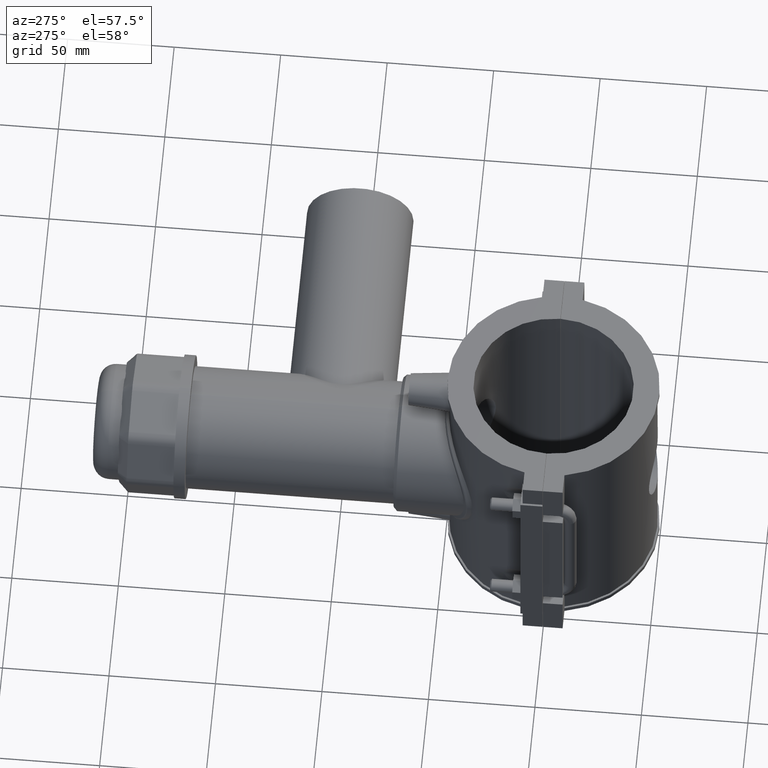
[diagram: clean part render]
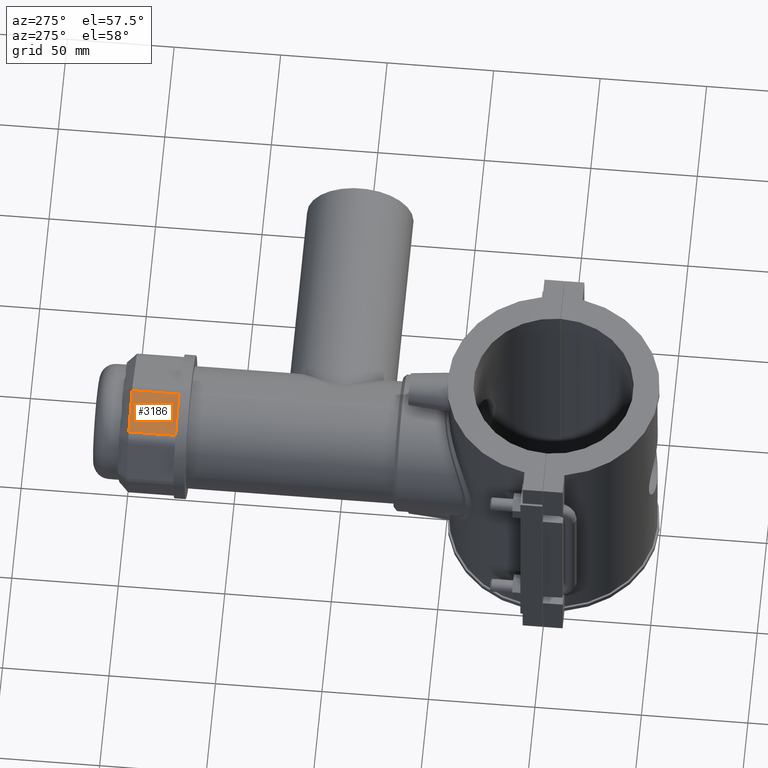
[diagram: same view with one face highlighted and labeled with its STEP entity id]
A machine part, auxiliary view. The second image highlights one B-rep face of the part: STEP entity #3186.
In plain terms, the highlighted planar face has unit normal (-0.3827, -0, 0.9239).
Its self-contained STEP definition (entity closure, byte-faithful):
#68=LINE('',#4946,#355);
#80=LINE('',#4999,#367);
#82=LINE('',#5005,#369);
#83=LINE('',#5006,#370);
#355=VECTOR('',#3765,19.6179282490471);
#367=VECTOR('',#3833,22.0499999999999);
#369=VECTOR('',#3839,22.0499999999999);
#370=VECTOR('',#3840,19.6179282490471);
#806=FACE_OUTER_BOUND('',#1004,.T.);
#1004=EDGE_LOOP('',(#2226,#2227,#2228,#2229));
#1373=VERTEX_POINT('',#4934);
#1377=VERTEX_POINT('',#4944);
#1390=VERTEX_POINT('',#4998);
#1392=VERTEX_POINT('',#5004);
#1696=EDGE_CURVE('',#1377,#1373,#68,.T.);
#1723=EDGE_CURVE('',#1373,#1390,#80,.T.);
#1726=EDGE_CURVE('',#1392,#1377,#82,.T.);
#1727=EDGE_CURVE('',#1390,#1392,#83,.T.);
#2226=ORIENTED_EDGE('',*,*,#1696,.F.);
#2227=ORIENTED_EDGE('',*,*,#1726,.F.);
#2228=ORIENTED_EDGE('',*,*,#1727,.F.);
#2229=ORIENTED_EDGE('',*,*,#1723,.F.);
#3055=PLANE('',#3416);
#3186=ADVANCED_FACE('',(#806),#3055,.T.);
#3416=AXIS2_PLACEMENT_3D('',#5003,#3837,#3838);
#3765=DIRECTION('',(0.923879532511287,-1.17163010133158E-16,0.38268343236509));
#3833=DIRECTION('',(-5.08583620075539E-32,-1.,-3.34530478229802E-16));
#3837=DIRECTION('center_axis',(-0.38268343236509,-3.09065861837727E-16,
0.923879532511287));
#3838=DIRECTION('ref_axis',(-0.923879532511287,0.,-0.38268343236509));
#3839=DIRECTION('',(-3.77354998585761E-32,1.,3.34530478229802E-16));
#3840=DIRECTION('',(-0.923879532511287,1.17163010133158E-16,-0.38268343236509));
#4934=CARTESIAN_POINT('',(-2.87012574273819,197.61,32.5611549916417));
#4944=CARTESIAN_POINT('',(-20.9947281223078,197.61,25.0536988734043));
#4946=CARTESIAN_POINT('',(-1.19324269325231,197.61,33.2557426932523));
#4998=CARTESIAN_POINT('',(-2.87012574273819,175.56,32.5611549916417));
#4999=CARTESIAN_POINT('',(-2.87012574273819,202.11,32.5611549916417));
#5003=CARTESIAN_POINT('Origin',(-1.20736753927986E-14,202.11,33.7500000000001));
#5004=CARTESIAN_POINT('',(-20.9947281223078,175.56,25.0536988734043));
#5005=CARTESIAN_POINT('',(-20.9947281223078,202.11,25.0536988734043));
#5006=CARTESIAN_POINT('',(-0.835269885276616,175.56,33.4040198852767));